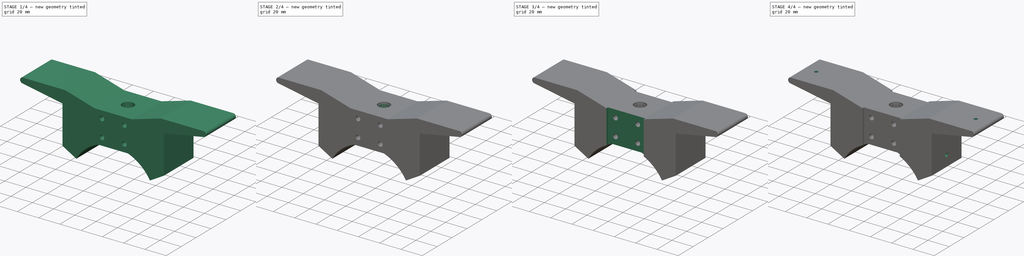
[diagram: build sequence overview — one tinted view per stage of 4, left to right]
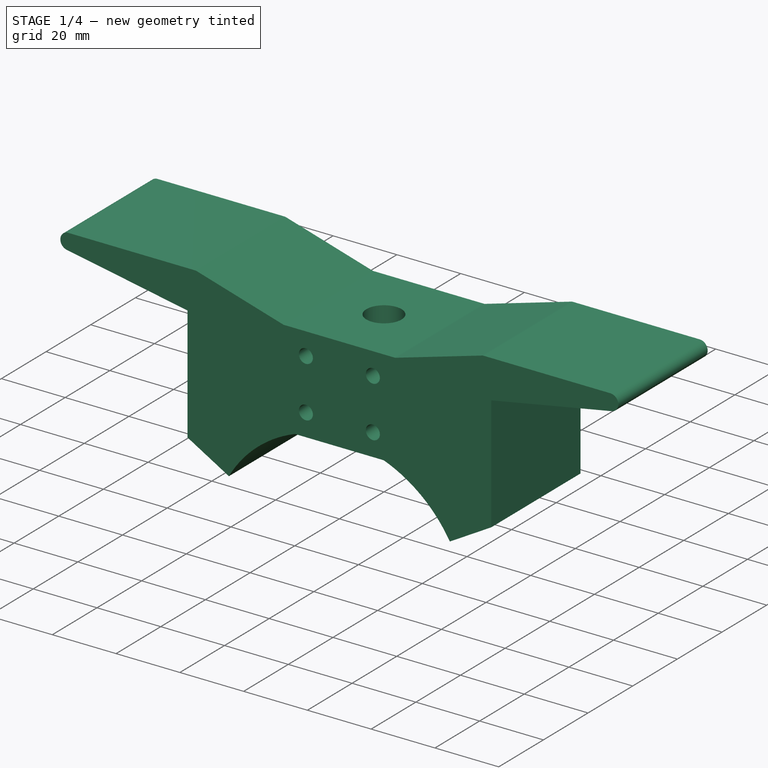
[diagram: stage 1 of 4 — iso view after this stage's code; geometry added in this stage tinted green]
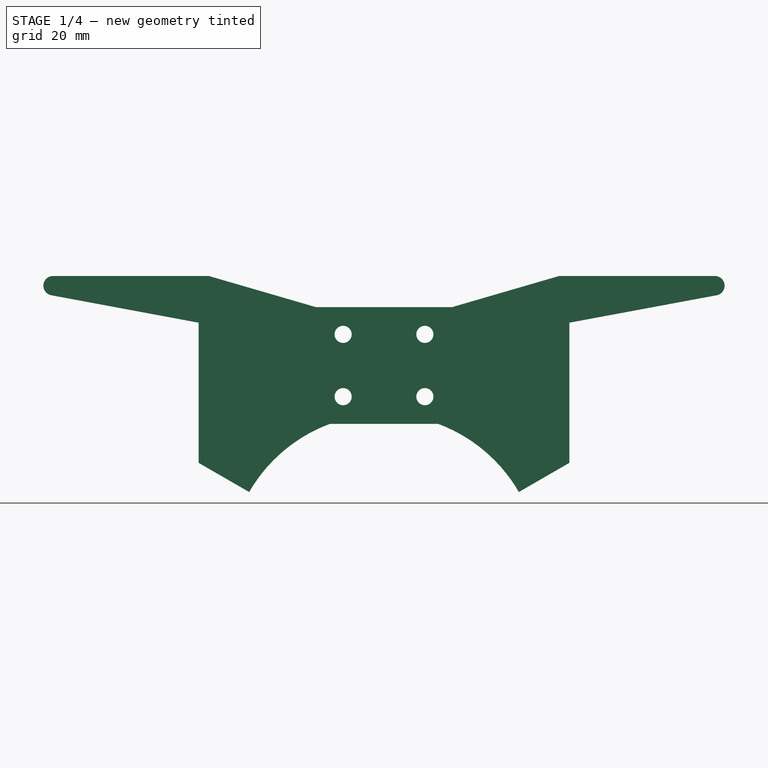
[diagram: stage 1 of 4 — front view after this stage's code; geometry added in this stage tinted green]
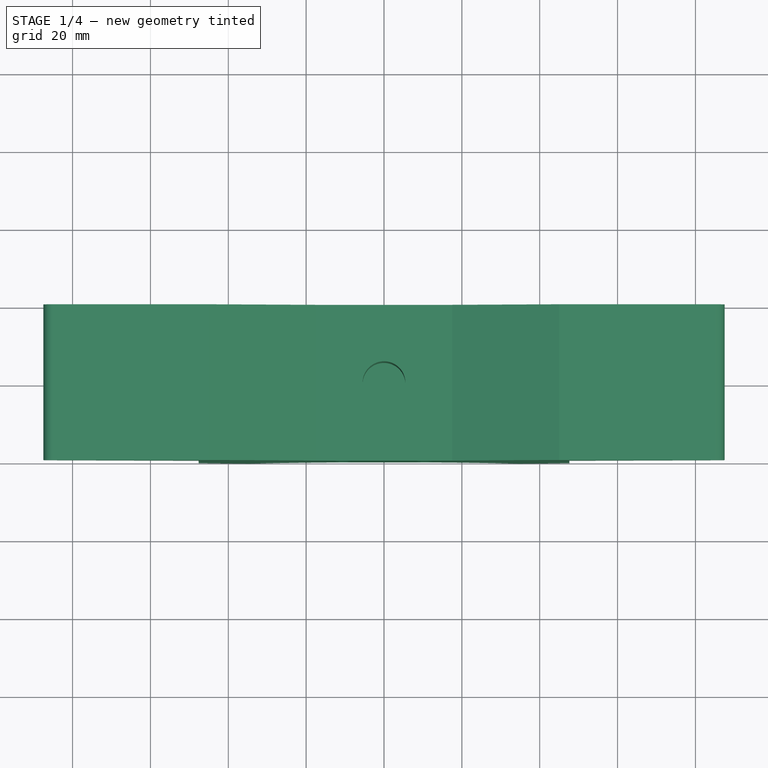
[diagram: stage 1 of 4 — top view after this stage's code; geometry added in this stage tinted green]
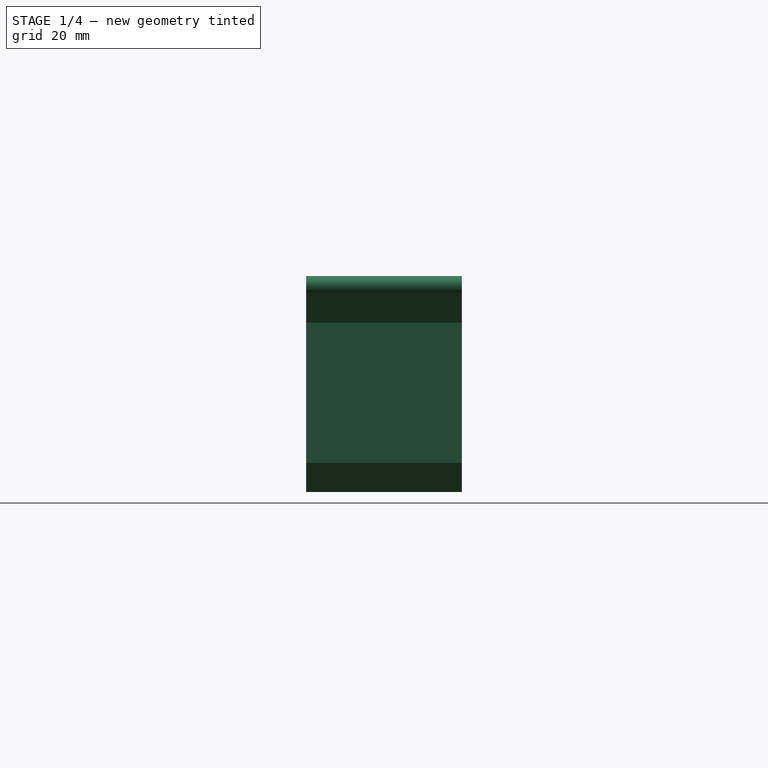
[diagram: stage 1 of 4 — right view after this stage's code; geometry added in this stage tinted green]
FCSTD DOCUMENT  (FreeCAD 0.18.4R)
Label: part1
License: All rights reserved
LicenseURL: http://en.wikipedia.org/wiki/All_rights_reserved
objects: Sketcher::SketchObject×10, PartDesign::Hole×6, PartDesign::Pad×2, PartDesign::Pocket×2, PartDesign::Mirrored×2, PartDesign::PolarPattern×1, PartDesign::Body×1, App::Part×1
note: 34 computed .brp shape members not serialized (recipe doc carries the construction recipe); baked Part::Feature solids carry a one-line shape summary decoded from their .brp

FEATURE [Sketcher::SketchObject] Sketch
  MapMode = 5
  Placement = pos=(0,0,0) rot=(1,0,0;1.5708rad)
  Support = -> [XZ_Plane003]
  sketch-geometry (16):
    g0: LineSegment StartX=-17.5 StartY=79.5 StartZ=0 EndX=17.5 EndY=79.5 EndZ=0
    g1: LineSegment StartX=17.5 StartY=79.5 StartZ=0 EndX=45 EndY=87.5 EndZ=0
    g2: LineSegment StartX=45 StartY=87.5 StartZ=0 EndX=85 EndY=87.5 EndZ=0
    g3: LineSegment StartX=85.4576 StartY=82.5422 StartZ=0 EndX=47.6314 EndY=75.5 EndZ=0
    g4: LineSegment StartX=-47.6314 StartY=75.5 StartZ=0 EndX=-85.4576 EndY=82.5422 EndZ=0
    g5: LineSegment StartX=-85 StartY=87.5 StartZ=0 EndX=-45 EndY=87.5 EndZ=0
    g6: LineSegment StartX=-45 StartY=87.5 StartZ=0 EndX=-17.5 EndY=79.5 EndZ=0
    g7: ArcOfCircle CenterX=-85 CenterY=85 CenterZ=0 NormalX=0 NormalY=0 NormalZ=1 AngleXU=0 Radius=2.5 StartAngle=1.57079 EndAngle=4.52832
    g8: ArcOfCircle CenterX=85 CenterY=85 CenterZ=0 NormalX=0 NormalY=0 NormalZ=1 AngleXU=0 Radius=2.5 StartAngle=4.89646 EndAngle=7.85399
    g9: ArcOfCircle CenterX=5.2e-15 CenterY=12 CenterZ=0 NormalX=0 NormalY=0 NormalZ=1 AngleXU=0 Radius=40 StartAngle=0.523599 EndAngle=1.21538
    g10: ArcOfCircle CenterX=5.2e-15 CenterY=12 CenterZ=0 NormalX=0 NormalY=0 NormalZ=1 AngleXU=0 Radius=40 StartAngle=1.92622 EndAngle=2.61799
    g11: LineSegment StartX=-13.9194 StartY=49.5 StartZ=0 EndX=13.9194 EndY=49.5 EndZ=0
    g12: LineSegment StartX=-47.6314 StartY=39.5 StartZ=0 EndX=-34.641 EndY=32 EndZ=0
    g13: LineSegment StartX=34.641 StartY=32 StartZ=0 EndX=47.6314 EndY=39.5 EndZ=0
    g14: LineSegment StartX=-47.6314 StartY=75.5 StartZ=0 EndX=-47.6314 EndY=39.5 EndZ=0
    g15: LineSegment StartX=47.6314 StartY=75.5 StartZ=0 EndX=47.6314 EndY=39.5 EndZ=0
  constraints (43):
    c: Coincident(g1,g0)
    c: Coincident(g2,g1)
    c: Coincident(g6,g5)
    c: Coincident(g6,g0)
    c: Symmetric(g4,g3,g-2)
    c: Symmetric(g5,g2,g-2)
    c: Symmetric(g5,g1,g-2)
    c: Symmetric(g0,g0,g-2)
    c: DistanceX(g0,g0) = 35
    c: DistanceY(g0,g5) = 8
    c: Horizontal(g5)
    c: Symmetric(g4,g3,g-2)
    c: DistanceX(g5,g1) = 90
    c: Coincident(g8,g2)
    c: Coincident(g3,g8)
    c: Coincident(g7,g4)
    c: Coincident(g7,g5)
    c: Tangent(g5,g7)
    c: Tangent(g7,g4)
    c: Radius(g7) = 2.5
    c: DistanceX(g5,g2) = 170
    c: DistanceY(g4,g0) = 4
    c: Coincident(g11,g10)
    c: Coincident(g11,g9)
    c: Symmetric(g10,g9,g-2)
    c: Symmetric(g10,g9,g-2)
    c: Distance(g12) = 15
    c: Symmetric(g12,g13,g-2)
    c: Symmetric(g12,g13,g-2)
    c: Coincident(g12,g10)
    c: Radius(g10) = 40
    c: Coincident(g14,g4)
    c: Coincident(g14,g12)
    c: Coincident(g15,g3)
    c: Coincident(g15,g13)
    c: Vertical(g14)
    c: DistanceY(g10,g0) = 30
    c: Tangent(g8,g3)
    c: Coincident(g10,g9)
    c: DistanceY(g-1,g9) = 12
    c: DistanceY(g9,g9) = 37.5
    c: PointOnObject(g9,g12)
    c: Angle(g12,g-2) = 2.0944
FEATURE [PartDesign::Pad] Pad
  Length = 40
  Length2 = 100
  Midplane = true
  Placement = pos=(0,0,0) rot=(1,0,0;1.5708rad)
  Profile = -> Sketch
  Type = 0
FEATURE [Sketcher::SketchObject] Sketch002
  MapMode = 5
  Placement = pos=(0,-20,-4e-15) rot=(1,0,0;1.5708rad)
  sketch-geometry (4):
    g0: Circle CenterX=-10.5 CenterY=72.5 CenterZ=0 NormalX=0 NormalY=0 NormalZ=1 AngleXU=0 Radius=3.28014
    g1: Circle CenterX=-10.5 CenterY=56.5 CenterZ=0 NormalX=0 NormalY=0 NormalZ=1 AngleXU=0 Radius=2.88366
    g2: Circle CenterX=10.5 CenterY=72.5 CenterZ=0 NormalX=0 NormalY=0 NormalZ=1 AngleXU=0 Radius=4.22061
    g3: Circle CenterX=10.5 CenterY=56.5 CenterZ=0 NormalX=0 NormalY=0 NormalZ=1 AngleXU=0 Radius=2.92866
  constraints (6):
    c: DistanceY(g1,g0) = 16
    c: DistanceY(g-1,g0) = 72.5
    c: DistanceX(g0,g2) = 21
    c: Symmetric(g0,g2,g-2)
    c: Symmetric(g1,g3,g-2)
    c: DistanceX(g1,g3) = 21
FEATURE [PartDesign::Hole] Hole001
  BaseFeature = -> Pad
  Depth = 4
  DepthType = 1
  Diameter = 4.4
  DrillPoint = 0
  DrillPointAngle = 118
  HoleCutCountersinkAngle = 90
  HoleCutDepth = 0
  HoleCutDiameter = 4
  HoleCutType = 0
  ModelActualThread = false
  Placement = pos=(0,0,0) rot=(1,0,0;1.5708rad)
  Profile = -> Sketch002
  Tapered = false
  TaperedAngle = 90
  ThreadAngle = 60
  ThreadClass = 0
  ThreadCutOffInner = 0.0757772
  ThreadCutOffOuter = 0.151554
  ThreadDirection = 0
  ThreadFit = 0
  ThreadPitch = 0.7
  ThreadSize = 5
  ThreadType = 1
  Threaded = false
FEATURE [Sketcher::SketchObject] Sketch003
  MapMode = 5
  Placement = pos=(0,-1.8e-14,79.5) rot=(0,0,1;3.14159rad)
  sketch-geometry (1):
    g0: Circle CenterX=0 CenterY=0 CenterZ=0 NormalX=0 NormalY=0 NormalZ=1 AngleXU=0 Radius=5.25014
  constraints (1):
    c: Coincident(g0,g-1)
FEATURE [PartDesign::Hole] Hole002
  BaseFeature = -> Hole001
  Depth = 25
  DepthType = 0
  Diameter = 11
  DrillPoint = 0
  DrillPointAngle = 118
  HoleCutCountersinkAngle = 90
  HoleCutDepth = 0
  HoleCutDiameter = 0
  HoleCutType = 0
  ModelActualThread = false
  Placement = pos=(0,0,0) rot=(1,0,0;1.5708rad)
  Profile = -> Sketch003
  Tapered = false
  TaperedAngle = 90
  ThreadAngle = 0
  ThreadClass = 0
  ThreadCutOffInner = 0
  ThreadCutOffOuter = 0
  ThreadDirection = 0
  ThreadFit = 0
  ThreadPitch = 0
  ThreadSize = 0
  ThreadType = 0
  Threaded = false
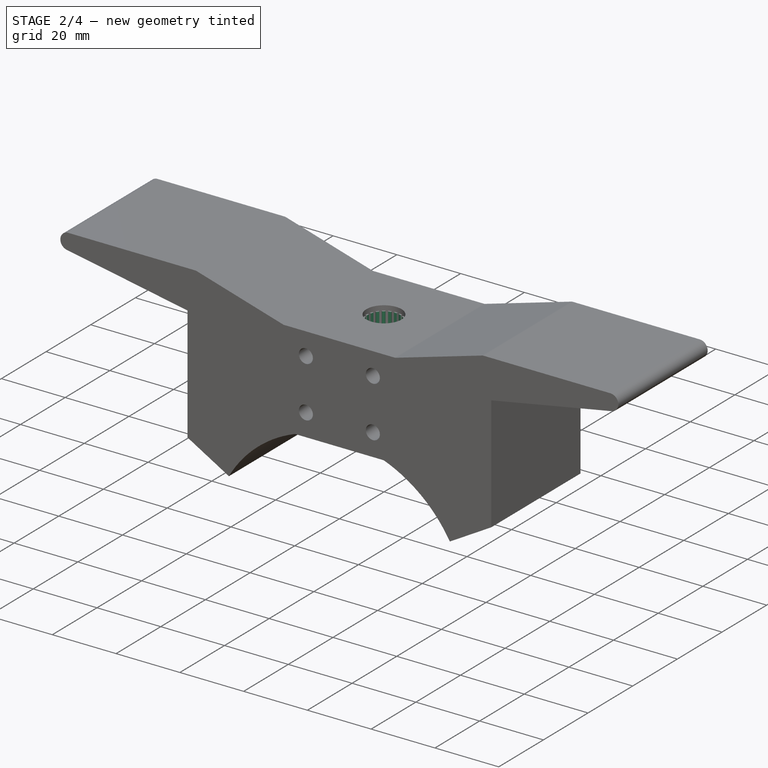
[diagram: stage 2 of 4 — iso view after this stage's code; geometry added in this stage tinted green]
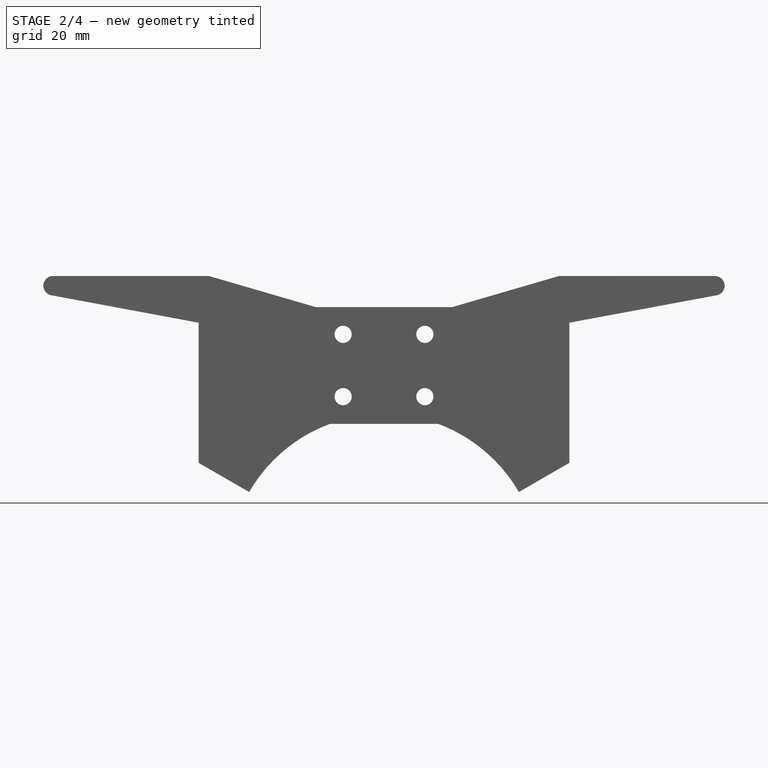
[diagram: stage 2 of 4 — front view after this stage's code; geometry added in this stage tinted green]
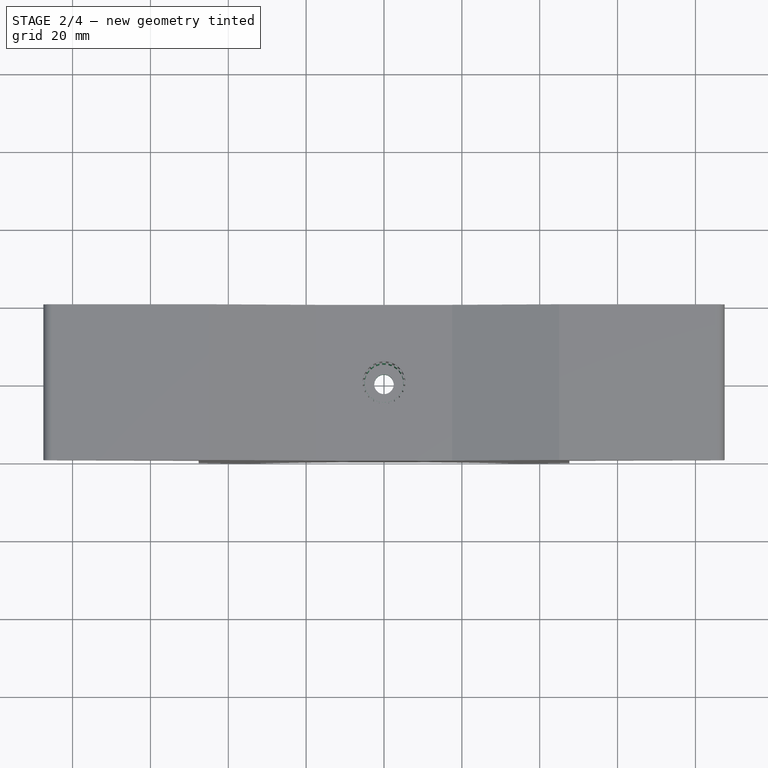
[diagram: stage 2 of 4 — top view after this stage's code; geometry added in this stage tinted green]
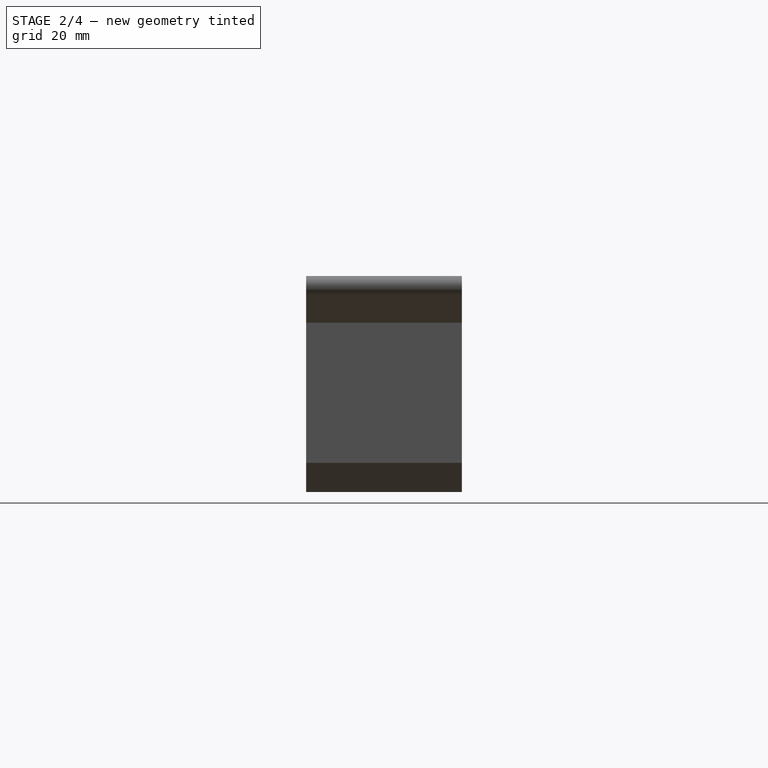
[diagram: stage 2 of 4 — right view after this stage's code; geometry added in this stage tinted green]
FEATURE [Sketcher::SketchObject] Sketch004
  MapMode = 5
  Placement = pos=(0,-1.2e-14,54.5) rot=(0,0,1;3.14159rad)
  Support = -> [Hole002]
  sketch-geometry (1):
    g0: Circle CenterX=0 CenterY=0 CenterZ=0 NormalX=0 NormalY=0 NormalZ=1 AngleXU=0 Radius=5.60027
  constraints (1):
    c: Coincident(g0,g-1)
FEATURE [PartDesign::Hole] Hole003
  BaseFeature = -> Hole002
  Depth = 25
  DepthType = 1
  Diameter = 5
  DrillPoint = 0
  DrillPointAngle = 118
  HoleCutCountersinkAngle = 90
  HoleCutDepth = 0
  HoleCutDiameter = 0
  HoleCutType = 0
  ModelActualThread = false
  Placement = pos=(0,0,0) rot=(1,0,0;1.5708rad)
  Profile = -> Sketch004
  Tapered = false
  TaperedAngle = 90
  ThreadAngle = 0
  ThreadClass = 0
  ThreadCutOffInner = 0
  ThreadCutOffOuter = 0
  ThreadDirection = 0
  ThreadFit = 0
  ThreadPitch = 0
  ThreadSize = 0
  ThreadType = 0
  Threaded = false
FEATURE [Sketcher::SketchObject] Sketch005
  AttachmentOffset = pos=(0,0,-1.5) rot=(0,0,1;0rad)
  MapMode = 5
  Placement = pos=(0,0,78) rot=(0,0,1;3.14159rad)
  Support = -> [Hole003]
  sketch-geometry (6):
    g0: ArcOfCircle CenterX=0 CenterY=0 CenterZ=0 NormalX=0 NormalY=0 NormalZ=1 AngleXU=0 Radius=5.5 StartAngle=6.19592 EndAngle=6.37045
    g1: LineSegment StartX=5.47907 StartY=0.479357 StartZ=0 EndX=5.07962 EndY=0.444409 EndZ=0
    g2: LineSegment StartX=5.47907 StartY=-0.479357 StartZ=0 EndX=5.07962 EndY=-0.444409 EndZ=0
    g3: ArcOfCircle CenterX=0 CenterY=0 CenterZ=0 NormalX=0 NormalY=0 NormalZ=1 AngleXU=0 Radius=5 StartAngle=6.21553 EndAngle=6.35084
    g4: ArcOfCircle CenterX=5.08833 CenterY=0.344789 CenterZ=0 NormalX=0 NormalY=0 NormalZ=1 AngleXU=0 Radius=0.1 StartAngle=1.65806 EndAngle=3.20927
    g5: ArcOfCircle CenterX=5.08833 CenterY=-0.344789 CenterZ=0 NormalX=0 NormalY=0 NormalZ=1 AngleXU=0 Radius=0.1 StartAngle=3.07391 EndAngle=4.62512
  constraints (20):
    c: Coincident(g-1,g0)
    c: Radius(g0) = 5.5
    c: Symmetric(g0,g0,g-1)
    c: Coincident(g1,g0)
    c: Coincident(g2,g0)
    c: Coincident(g0,g3)
    c: Coincident(g3,g4)
    c: Coincident(g3,g5)
    c: Coincident(g5,g2)
    c: Coincident(g4,g1)
    c: Symmetric(g3,g3,g-1)
    c: Radius(g3) = 5
    c: Tangent(g4,g3)
    c: Tangent(g3,g5)
    c: Tangent(g4,g1)
    c: Radius(g4) = 0.1
    c: Symmetric(g1,g2,g-1)
    c: PointOnObject(g0,g1)
    c: Equal(g4,g5)
    c: Angle(g2,g1) = 0.174533
FEATURE [PartDesign::Pad] Pad001
  BaseFeature = -> Hole003
  Length = 22
  Length2 = 100
  Placement = pos=(0,0,0) rot=(1,0,0;1.5708rad)
  Profile = -> Sketch005
  Reversed = true
  Type = 0
FEATURE [PartDesign::PolarPattern] PolarPattern
  Angle = 360
  Axis = -> Z_Axis003
  BaseFeature = -> Pad001
  Occurrences = 20
  Originals = -> [Pad001]
  Placement = pos=(0,0,0) rot=(1,0,0;1.5708rad)
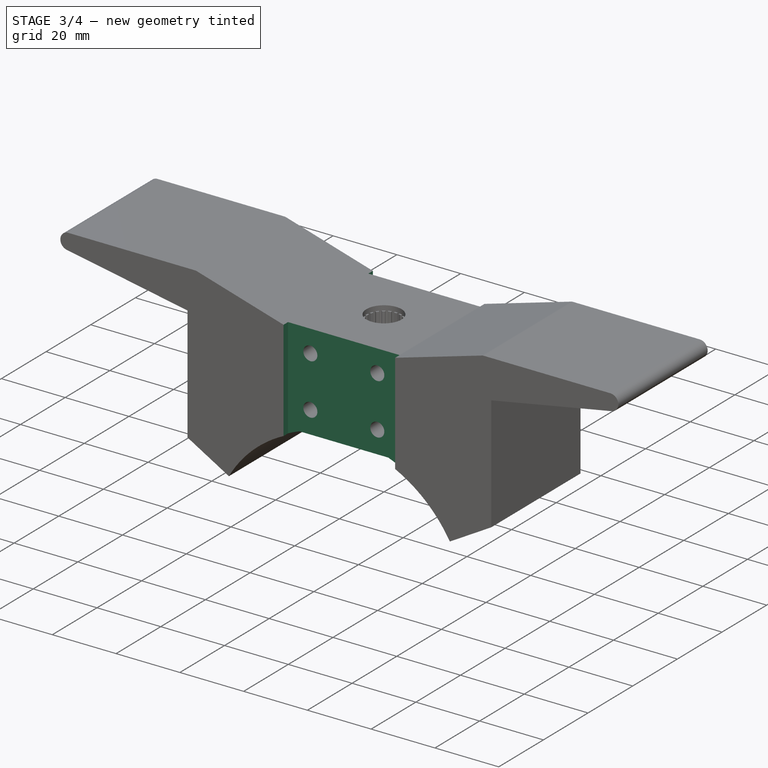
[diagram: stage 3 of 4 — iso view after this stage's code; geometry added in this stage tinted green]
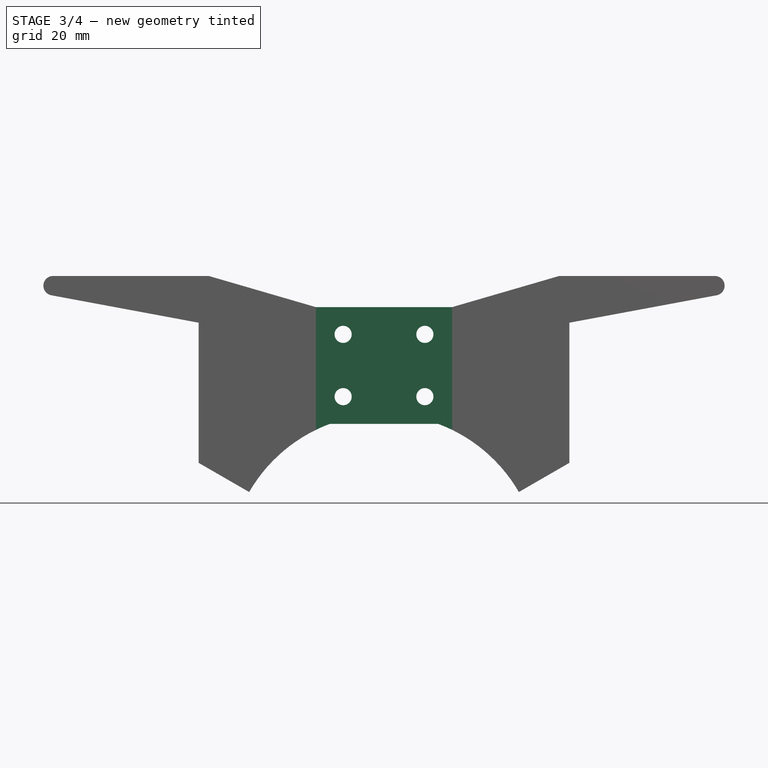
[diagram: stage 3 of 4 — front view after this stage's code; geometry added in this stage tinted green]
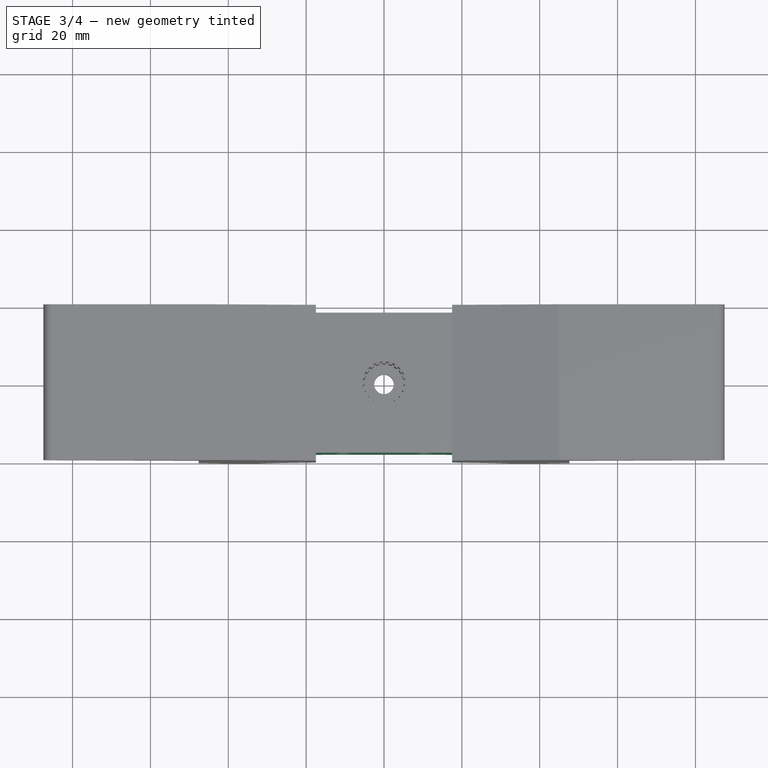
[diagram: stage 3 of 4 — top view after this stage's code; geometry added in this stage tinted green]
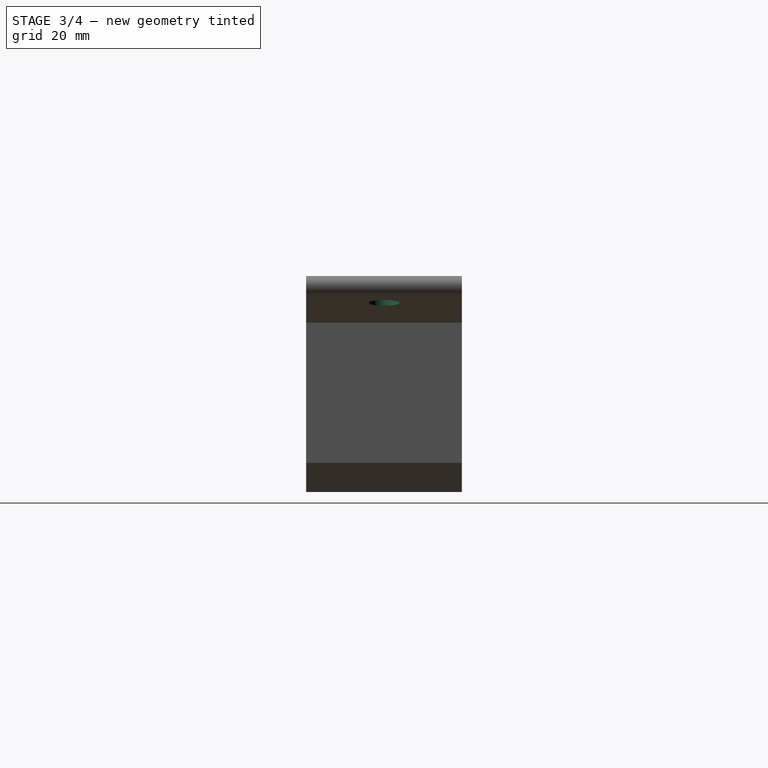
[diagram: stage 3 of 4 — right view after this stage's code; geometry added in this stage tinted green]
FEATURE [Sketcher::SketchObject] Sketch007
  AttachmentOffset = pos=(0,0,-5) rot=(0,0,1;0rad)
  MapMode = 5
  Placement = pos=(0,9.2e-15,82.5) rot=(0,0,1;3.14159rad)
  Support = -> [PolarPattern]
  sketch-geometry (2):
    g0: Circle CenterX=-75 CenterY=0 CenterZ=0 NormalX=0 NormalY=0 NormalZ=1 AngleXU=0 Radius=8
    g1: Circle CenterX=75 CenterY=0 CenterZ=0 NormalX=0 NormalY=0 NormalZ=1 AngleXU=0 Radius=8
  constraints (5):
    c: PointOnObject(g0,g-1)
    c: Symmetric(g0,g1,g-2)
    c: DistanceX(g0,g1) = 150
    c: Radius(g0) = 8
    c: Equal(g0,g1)
FEATURE [PartDesign::Hole] Hole004
  BaseFeature = -> PolarPattern
  Depth = 74
  DepthType = 1
  Diameter = 8
  DrillPoint = 0
  DrillPointAngle = 118
  HoleCutCountersinkAngle = 90
  HoleCutDepth = 0
  HoleCutDiameter = 0
  HoleCutType = 0
  ModelActualThread = false
  Placement = pos=(0,0,0) rot=(1,0,0;1.5708rad)
  Profile = -> Sketch007
  Tapered = false
  TaperedAngle = 90
  ThreadAngle = 0
  ThreadClass = 0
  ThreadCutOffInner = 0
  ThreadCutOffOuter = 0
  ThreadDirection = 0
  ThreadFit = 0
  ThreadPitch = 0
  ThreadSize = 0
  ThreadType = 0
  Threaded = false
FEATURE [Sketcher::SketchObject] Sketch008
  MapMode = 5
  Placement = pos=(-47.6314,0,0) rot=(0.707107,0,-0.707107;3.14159rad)
  Support = -> [Hole004]
  sketch-geometry (4):
    g0: LineSegment StartX=-17.5 StartY=-0.5 StartZ=0 EndX=17.5 EndY=-0.5 EndZ=0
    g1: LineSegment StartX=17.5 StartY=-0.5 StartZ=0 EndX=17.5 EndY=0.5 EndZ=0
    g2: LineSegment StartX=17.5 StartY=0.5 StartZ=0 EndX=-17.5 EndY=0.5 EndZ=0
    g3: LineSegment StartX=-17.5 StartY=0.5 StartZ=0 EndX=-17.5 EndY=-0.5 EndZ=0
  constraints (9):
    c: Coincident(g0,g1)
    c: Coincident(g1,g2)
    c: Coincident(g2,g3)
    c: Coincident(g3,g0)
    c: Symmetric(g2,g1,g-2)
    c: Symmetric(g0,g0,g-2)
    c: Symmetric(g1,g0,g-1)
    c: DistanceX(g2,g2) = 35
    c: DistanceY(g1,g1) = 1
FEATURE [PartDesign::Pocket] Pocket
  BaseFeature = -> Hole004
  Length = 5
  Length2 = 100
  Placement = pos=(0,0,0) rot=(1,0,0;1.5708rad)
  Profile = -> Sketch008
  Type = 1
FEATURE [Sketcher::SketchObject] Sketch009
  MapMode = 5
  Placement = pos=(0,20,0) rot=(-1,0,0;1.5708rad)
  Support = -> [Pocket]
  sketch-geometry (4):
    g0: LineSegment StartX=-17.5 StartY=0 StartZ=0 EndX=17.5 EndY=0 EndZ=0
    g1: LineSegment StartX=17.5 StartY=0 StartZ=0 EndX=17.5 EndY=-79.5 EndZ=0
    g2: LineSegment StartX=17.5 StartY=-79.5 StartZ=0 EndX=-17.5 EndY=-79.5 EndZ=0
    g3: LineSegment StartX=-17.5 StartY=-79.5 StartZ=0 EndX=-17.5 EndY=0 EndZ=0
  constraints (10):
    c: Coincident(g0,g1)
    c: Coincident(g1,g2)
    c: Coincident(g2,g3)
    c: Coincident(g3,g0)
    c: Vertical(g1)
    c: Symmetric(g2,g1,g-2)
    c: Symmetric(g0,g0,g-2)
    c: DistanceY(g1,g1) = 79.5
    c: DistanceX(g0,g0) = 35
    c: PointOnObject(g-1,g0)
FEATURE [PartDesign::Pocket] Pocket001
  BaseFeature = -> Pocket
  Length = 2
  Length2 = 100
  Placement = pos=(0,0,0) rot=(1,0,0;1.5708rad)
  Profile = -> Sketch009
  Type = 0
FEATURE [PartDesign::Mirrored] Mirrored
  BaseFeature = -> Pocket001
  MirrorPlane = -> XZ_Plane003
  Originals = -> [Pocket001]
  Placement = pos=(0,0,0) rot=(1,0,0;1.5708rad)
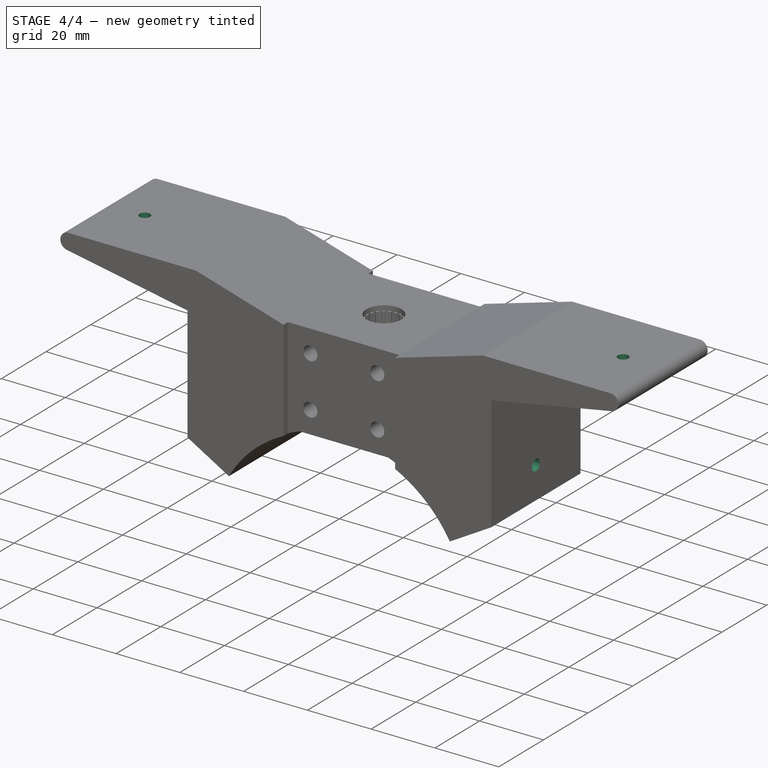
[diagram: stage 4 of 4 — iso view after this stage's code; geometry added in this stage tinted green]
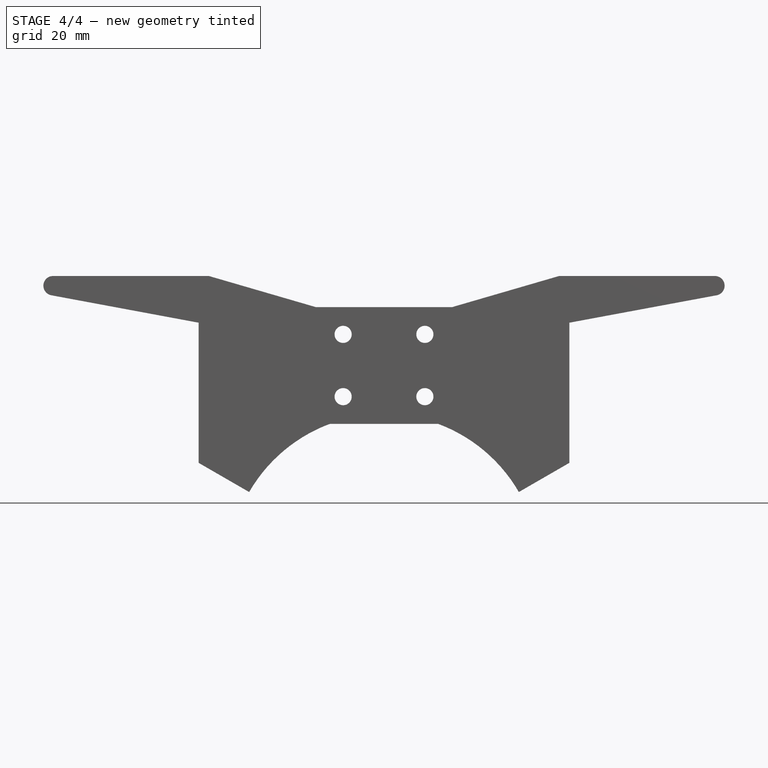
[diagram: stage 4 of 4 — front view after this stage's code; geometry added in this stage tinted green]
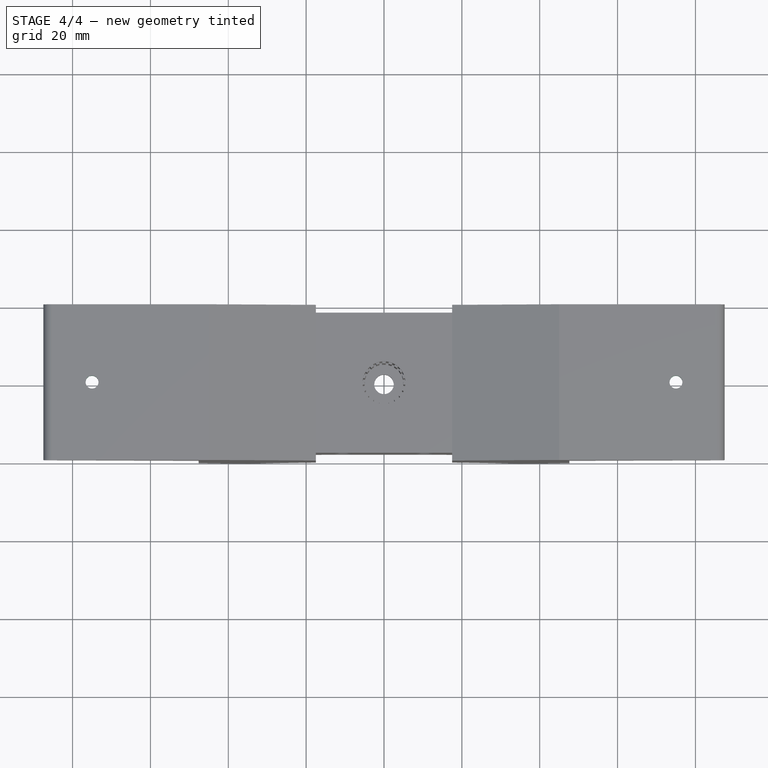
[diagram: stage 4 of 4 — top view after this stage's code; geometry added in this stage tinted green]
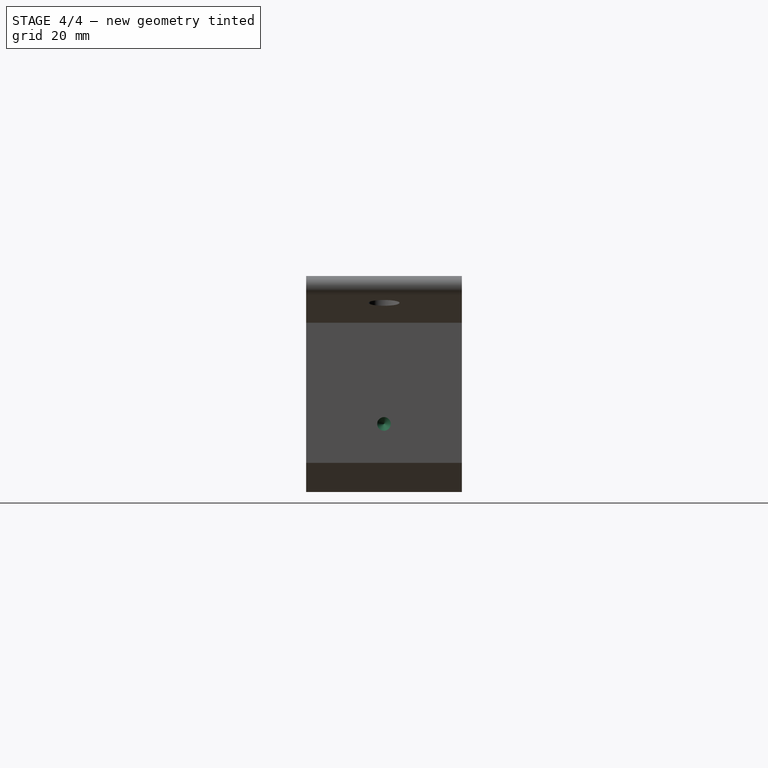
[diagram: stage 4 of 4 — right view after this stage's code; geometry added in this stage tinted green]
FEATURE [Sketcher::SketchObject] Sketch010
  MapMode = 5
  Placement = pos=(47.6314,0,0) rot=(0.707107,0,0.707107;3.14159rad)
  Support = -> [Mirrored]
  sketch-geometry (1):
    g0: Circle CenterX=49.5 CenterY=0 CenterZ=0 NormalX=0 NormalY=0 NormalZ=1 AngleXU=0 Radius=4.22549
  constraints (2):
    c: PointOnObject(g0,g-1)
    c: DistanceX(g-1,g0) = 49.5
FEATURE [PartDesign::Hole] Hole005
  BaseFeature = -> Mirrored
  Depth = 15
  DepthType = 0
  Diameter = 3.5
  DrillPoint = 1
  DrillPointAngle = 118
  HoleCutCountersinkAngle = 90
  HoleCutDepth = 0
  HoleCutDiameter = 0
  HoleCutType = 0
  ModelActualThread = false
  Placement = pos=(0,0,0) rot=(1,0,0;1.5708rad)
  Profile = -> Sketch010
  Tapered = false
  TaperedAngle = 90
  ThreadAngle = 0
  ThreadClass = 0
  ThreadCutOffInner = 0
  ThreadCutOffOuter = 0
  ThreadDirection = 0
  ThreadFit = 0
  ThreadPitch = 0
  ThreadSize = 0
  ThreadType = 0
  Threaded = false
FEATURE [PartDesign::Mirrored] Mirrored001
  BaseFeature = -> Hole005
  MirrorPlane = -> YZ_Plane003
  Originals = -> [Hole005]
  Placement = pos=(0,0,0) rot=(1,0,0;1.5708rad)
FEATURE [Sketcher::SketchObject] Sketch011
  MapMode = 5
  Placement = pos=(0,3.66e-14,82.5) rot=(1,0,0;3.14159rad)
  Support = -> [Mirrored001]
  sketch-geometry (2):
    g0: Circle CenterX=-75 CenterY=0 CenterZ=0 NormalX=0 NormalY=0 NormalZ=1 AngleXU=0 Radius=3.71573
    g1: Circle CenterX=75 CenterY=0 CenterZ=0 NormalX=0 NormalY=0 NormalZ=1 AngleXU=0 Radius=7.2849
  constraints (3):
    c: Symmetric(g0,g1,g-2)
    c: DistanceX(g0,g1) = 150
    c: PointOnObject(g0,g-1)
FEATURE [PartDesign::Hole] Hole
  BaseFeature = -> Mirrored001
  Depth = 25
  DepthType = 1
  Diameter = 3.3
  DrillPoint = 1
  DrillPointAngle = 118
  HoleCutCountersinkAngle = 90
  HoleCutDepth = 0
  HoleCutDiameter = 6
  HoleCutType = 2
  ModelActualThread = false
  Placement = pos=(0,0,0) rot=(1,0,0;1.5708rad)
  Profile = -> Sketch011
  Tapered = false
  TaperedAngle = 90
  ThreadAngle = 0
  ThreadClass = 0
  ThreadCutOffInner = 0
  ThreadCutOffOuter = 0
  ThreadDirection = 0
  ThreadFit = 0
  ThreadPitch = 0
  ThreadSize = 3
  ThreadType = 1
  Threaded = false
FEATURE [PartDesign::Body] Body
  Group = -> [Sketch,Pad,Sketch002,Hole001,Sketch003,Hole002,Sketch004,Hole003,Sketch005,Pad001,PolarPattern,Sketch007,Hole004,Sketch008,Pocket,Sketch009,Pocket001,Mirrored,Sketch010,Hole005,Mirrored001,Sketch011,Hole]
  Origin = -> Origin003
  Tip = -> Hole
FEATURE [App::Part] Part  label="part1"
  Group = -> [Body]
  Origin = -> Origin
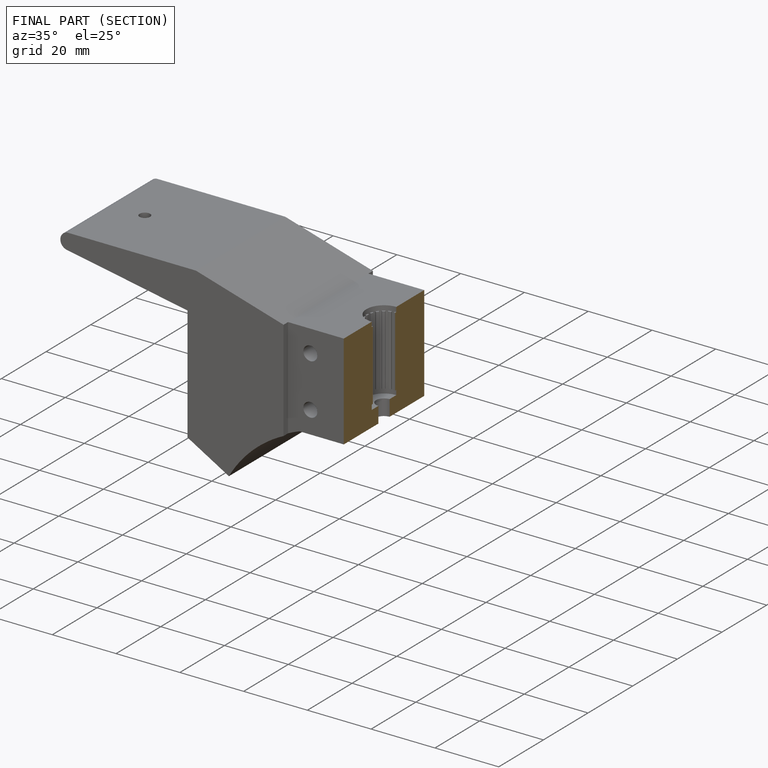
[diagram: finished part — half-section view (interior)]
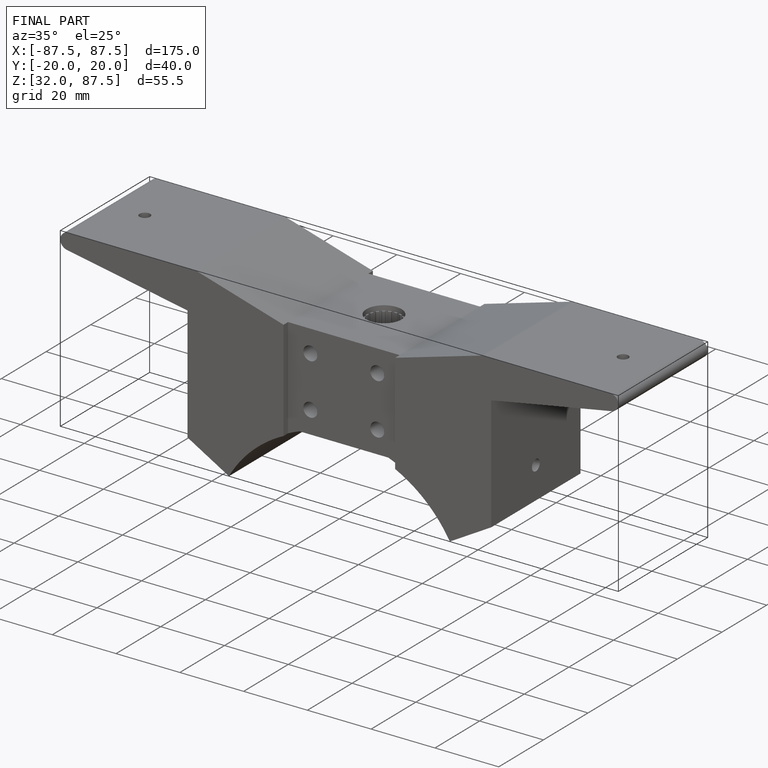
[diagram: finished part — iso view with bounding-box wireframe]
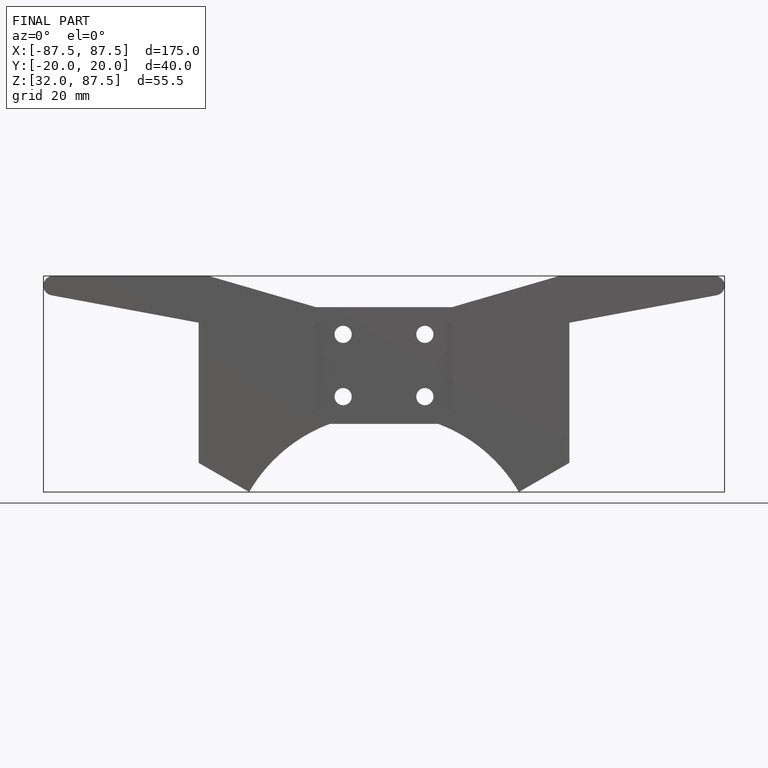
[diagram: finished part — front view with bounding-box wireframe]
